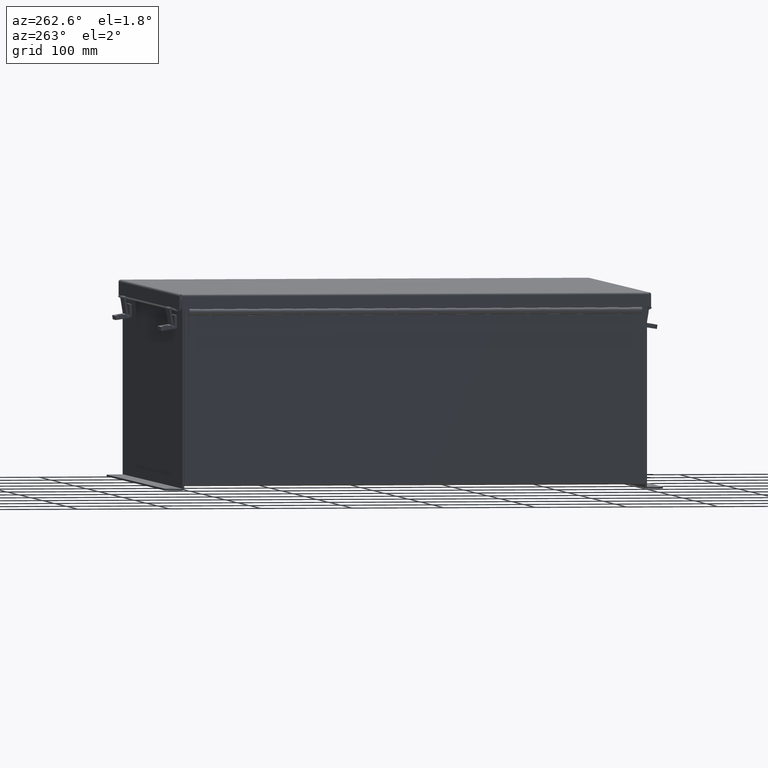
[diagram: clean part render]
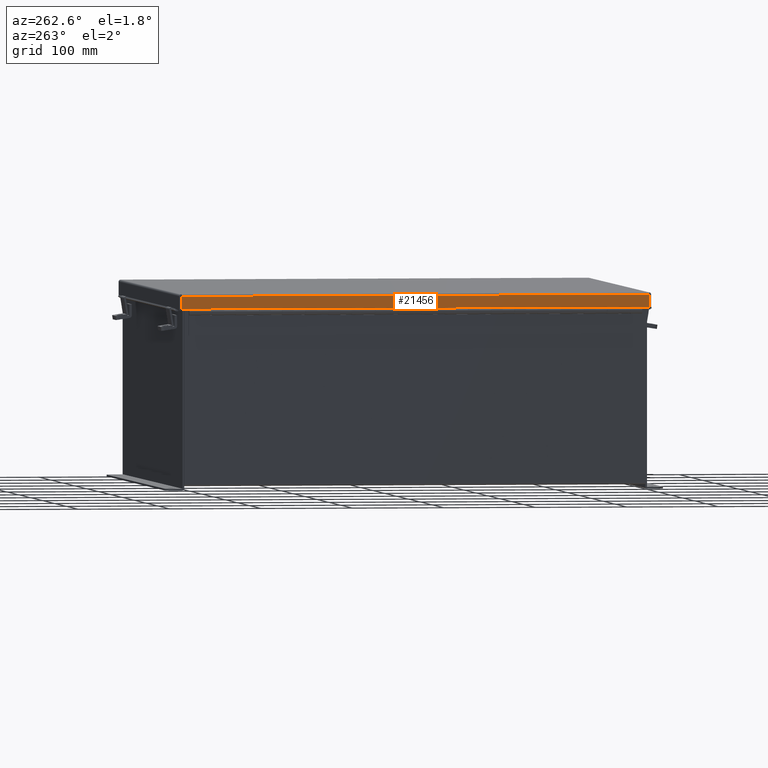
[diagram: same view with one face highlighted and labeled with its STEP entity id]
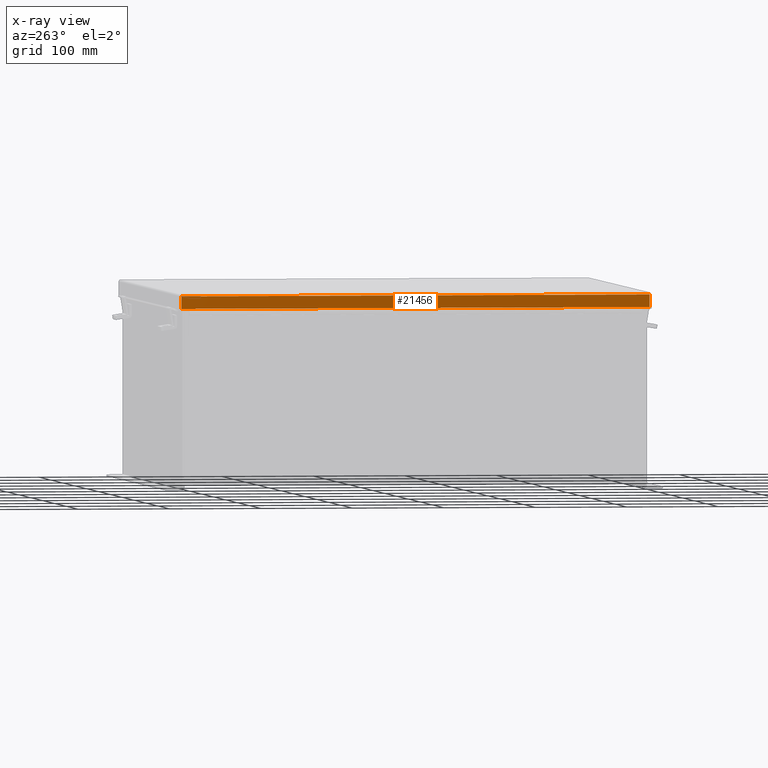
[diagram: x-ray of the same camera — body ghosted, the highlighted face saturated]
A machine part, auxiliary view. The second image highlights one B-rep face of the part: STEP entity #21456.
The next image is the same camera in x-ray: the body ghosted, the highlighted face saturated — about 0% of this face is hidden behind the body in this view.
In plain terms, the highlighted planar face has unit normal (1, -0, 0).
Its self-contained STEP definition (entity closure, byte-faithful):
#20 = VERTEX_POINT ( 'NONE', #20374 ) ;
#217 = CARTESIAN_POINT ( 'NONE',  ( 10.15625000000003900, -4.268512490100411300E-018, 0.5502999999999999000 ) ) ;
#1354 = ORIENTED_EDGE ( 'NONE', *, *, #6598, .F. ) ;
#1766 = VECTOR ( 'NONE', #9628, 39.37007874015748100 ) ;
#1828 = DIRECTION ( 'NONE',  ( 3.971430846686186800E-015, 1.846427556282924300E-029, 1.000000000000000000 ) ) ;
#2544 = PLANE ( 'NONE',  #11620 ) ;
#2572 = CARTESIAN_POINT ( 'NONE',  ( 10.15625000000003600, 10.07447893218813400, 0.01299999999999901400 ) ) ;
#5261 = LINE ( 'NONE', #19997, #1766 ) ;
#6598 = EDGE_CURVE ( 'NONE', #7217, #20953, #5261, .T. ) ;
#6909 = EDGE_CURVE ( 'NONE', #10128, #20, #22320, .T. ) ;
#7217 = VERTEX_POINT ( 'NONE', #11173 ) ;
#7786 = DIRECTION ( 'NONE',  ( -1.000000000000000000, -3.214874041279299500E-030, 3.971430846686186800E-015 ) ) ;
#8855 = DIRECTION ( 'NONE',  ( -3.166671605124525800E-030, -1.000000000000000000, -1.853823127269377700E-029 ) ) ;
#9628 = DIRECTION ( 'NONE',  ( 3.971430846686186800E-015, 1.846427556282924300E-029, 1.000000000000000000 ) ) ;
#10128 = VERTEX_POINT ( 'NONE', #2572 ) ;
#11173 = CARTESIAN_POINT ( 'NONE',  ( 10.15625000000003600, -10.07447893218813400, 0.01300000000000010700 ) ) ;
#11620 = AXIS2_PLACEMENT_3D ( 'NONE', #18088, #7786, #19851 ) ;
#12147 = CARTESIAN_POINT ( 'NONE',  ( 10.15625000000003600, 10.07447893218813600, -4.043135030623109600E-014 ) ) ;
#12400 = CARTESIAN_POINT ( 'NONE',  ( 10.15625000000004100, -10.07447893218813200, 0.5502999999999999000 ) ) ;
#14548 = EDGE_CURVE ( 'NONE', #10128, #7217, #20673, .T. ) ;
#16045 = VECTOR ( 'NONE', #21136, 39.37007874015748100 ) ;
#16152 = FACE_OUTER_BOUND ( 'NONE', #17265, .T. ) ;
#17265 = EDGE_LOOP ( 'NONE', ( #21539, #17851, #18591, #1354 ) ) ;
#17661 = VECTOR ( 'NONE', #1828, 39.37007874015748100 ) ;
#17851 = ORIENTED_EDGE ( 'NONE', *, *, #6909, .T. ) ;
#18088 = CARTESIAN_POINT ( 'NONE',  ( 10.15625000000003900, 0.0000000000000000000, -4.043135030623109600E-014 ) ) ;
#18591 = ORIENTED_EDGE ( 'NONE', *, *, #18897, .T. ) ;
#18897 = EDGE_CURVE ( 'NONE', #20, #20953, #19544, .T. ) ;
#18977 = VECTOR ( 'NONE', #8855, 39.37007874015748100 ) ;
#19461 = CARTESIAN_POINT ( 'NONE',  ( 10.15625000000003600, -10.15624999999999800, 0.01300000000000010700 ) ) ;
#19544 = LINE ( 'NONE', #217, #18977 ) ;
#19851 = DIRECTION ( 'NONE',  ( 3.971430846686186800E-015, 1.846427556282924000E-029, 1.000000000000000000 ) ) ;
#19997 = CARTESIAN_POINT ( 'NONE',  ( 10.15625000000003600, -10.07447893218813200, 0.0000000000000000000 ) ) ;
#20374 = CARTESIAN_POINT ( 'NONE',  ( 10.15625000000004100, 10.07447893218813400, 0.5502999999999999000 ) ) ;
#20673 = LINE ( 'NONE', #19461, #16045 ) ;
#20953 = VERTEX_POINT ( 'NONE', #12400 ) ;
#21136 = DIRECTION ( 'NONE',  ( -3.166671605124525800E-030, -1.000000000000000000, -1.853823127269377700E-029 ) ) ;
#21456 = ADVANCED_FACE ( 'NONE', ( #16152 ), #2544, .F. ) ;
#21539 = ORIENTED_EDGE ( 'NONE', *, *, #14548, .F. ) ;
#22320 = LINE ( 'NONE', #12147, #17661 ) ;